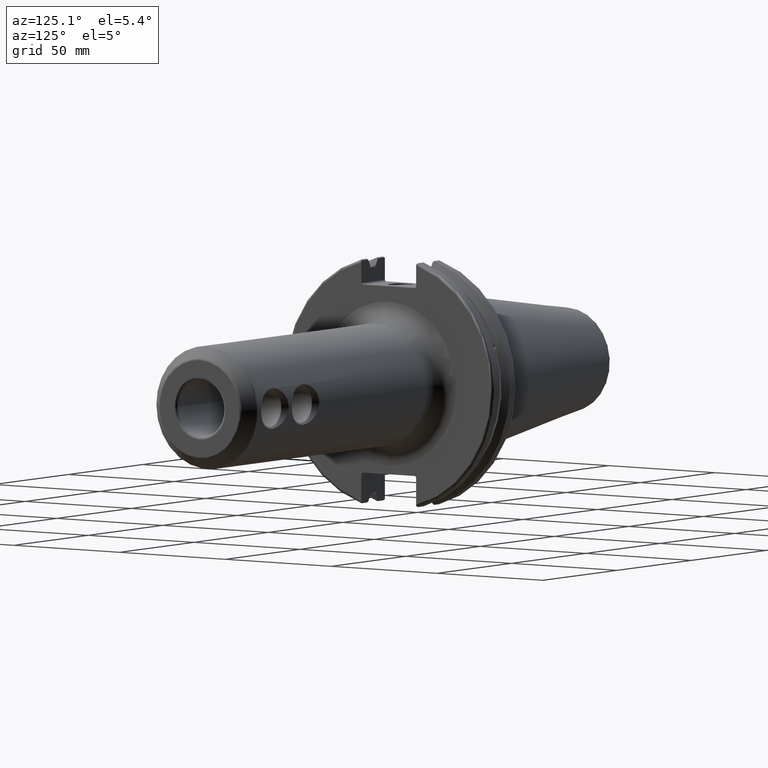
[diagram: clean part render]
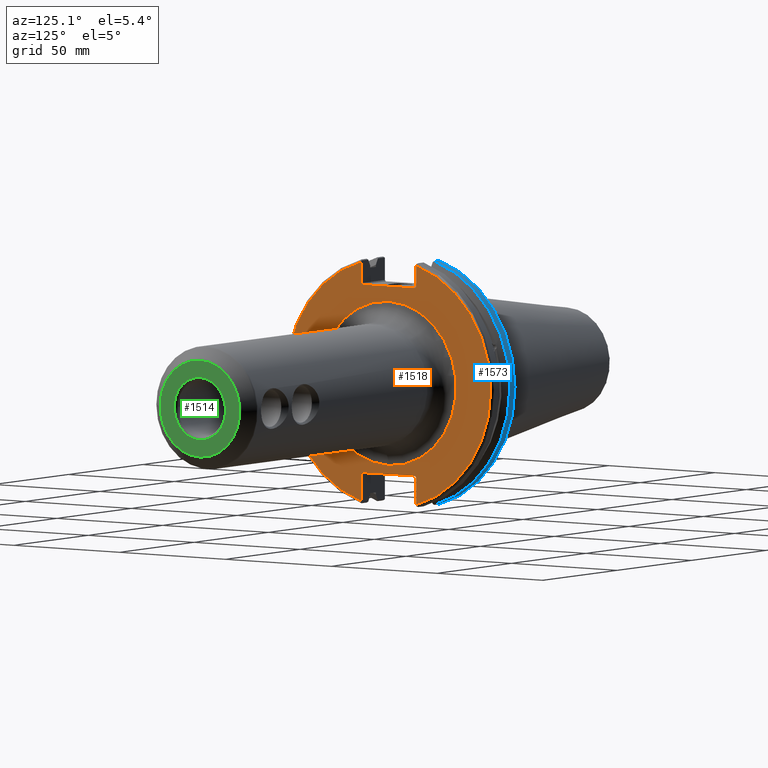
[diagram: same view with three faces highlighted in distinct colors, each labeled with its STEP entity id]
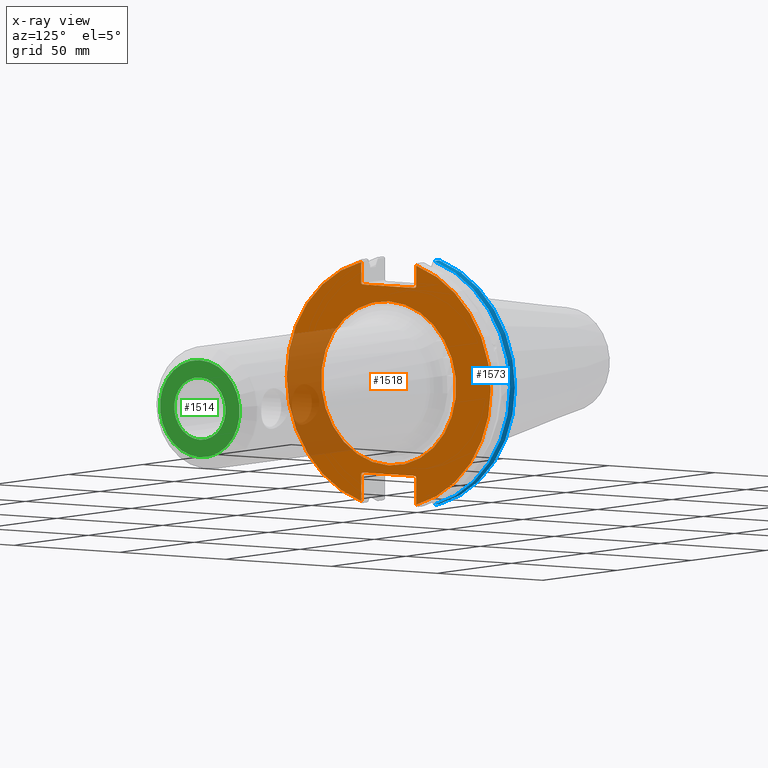
[diagram: x-ray of the same camera — body ghosted, the three highlighted faces saturated]
A machine part, auxiliary view with three faces highlighted in distinct colors.
The next image is the same camera in x-ray (body ghosted, the three faces saturated) — at least one of them is partly hidden behind the body in this view.
Their STEP definitions:

[orange] entity #1518 — the highlighted planar face has unit normal (1, 0, 0).
#34=PLANE('',#1648);
#75=FACE_BOUND('',#236,.T.);
#143=FACE_OUTER_BOUND('',#235,.T.);
#235=EDGE_LOOP('',(#1095,#1096,#1097,#1098,#1099,#1100,#1101,#1102,#1103,
#1104,#1105,#1106));
#236=EDGE_LOOP('',(#1107));
#348=CIRCLE('',#1647,31.876);
#349=CIRCLE('',#1649,48.2125);
#350=CIRCLE('',#1650,48.2125);
#413=LINE('',#2423,#505);
#414=LINE('',#2425,#506);
#415=LINE('',#2427,#507);
#416=LINE('',#2429,#508);
#417=LINE('',#2431,#509);
#418=LINE('',#2435,#510);
#419=LINE('',#2437,#511);
#420=LINE('',#2439,#512);
#421=LINE('',#2441,#513);
#422=LINE('',#2442,#514);
#505=VECTOR('',#1859,10.);
#506=VECTOR('',#1860,10.);
#507=VECTOR('',#1861,10.);
#508=VECTOR('',#1862,10.);
#509=VECTOR('',#1863,10.);
#510=VECTOR('',#1866,10.);
#511=VECTOR('',#1867,10.);
#512=VECTOR('',#1868,10.);
#513=VECTOR('',#1869,10.);
#514=VECTOR('',#1870,10.);
#659=VERTEX_POINT('',#2415);
#660=VERTEX_POINT('',#2419);
#661=VERTEX_POINT('',#2420);
#662=VERTEX_POINT('',#2422);
#663=VERTEX_POINT('',#2424);
#664=VERTEX_POINT('',#2426);
#665=VERTEX_POINT('',#2428);
#666=VERTEX_POINT('',#2430);
#667=VERTEX_POINT('',#2432);
#668=VERTEX_POINT('',#2434);
#669=VERTEX_POINT('',#2436);
#670=VERTEX_POINT('',#2438);
#671=VERTEX_POINT('',#2440);
#828=EDGE_CURVE('',#659,#659,#348,.T.);
#829=EDGE_CURVE('',#660,#661,#349,.T.);
#830=EDGE_CURVE('',#660,#662,#413,.T.);
#831=EDGE_CURVE('',#663,#662,#414,.T.);
#832=EDGE_CURVE('',#663,#664,#415,.T.);
#833=EDGE_CURVE('',#665,#664,#416,.T.);
#834=EDGE_CURVE('',#665,#666,#417,.T.);
#835=EDGE_CURVE('',#667,#666,#350,.T.);
#836=EDGE_CURVE('',#667,#668,#418,.T.);
#837=EDGE_CURVE('',#669,#668,#419,.T.);
#838=EDGE_CURVE('',#669,#670,#420,.T.);
#839=EDGE_CURVE('',#671,#670,#421,.T.);
#840=EDGE_CURVE('',#671,#661,#422,.T.);
#1095=ORIENTED_EDGE('',*,*,#829,.F.);
#1096=ORIENTED_EDGE('',*,*,#830,.T.);
#1097=ORIENTED_EDGE('',*,*,#831,.F.);
#1098=ORIENTED_EDGE('',*,*,#832,.T.);
#1099=ORIENTED_EDGE('',*,*,#833,.F.);
#1100=ORIENTED_EDGE('',*,*,#834,.T.);
#1101=ORIENTED_EDGE('',*,*,#835,.F.);
#1102=ORIENTED_EDGE('',*,*,#836,.T.);
#1103=ORIENTED_EDGE('',*,*,#837,.F.);
#1104=ORIENTED_EDGE('',*,*,#838,.T.);
#1105=ORIENTED_EDGE('',*,*,#839,.F.);
#1106=ORIENTED_EDGE('',*,*,#840,.T.);
#1107=ORIENTED_EDGE('',*,*,#828,.F.);
#1518=ADVANCED_FACE('',(#143,#75),#34,.T.);
#1647=AXIS2_PLACEMENT_3D('',#2417,#1853,#1854);
#1648=AXIS2_PLACEMENT_3D('',#2418,#1855,#1856);
#1649=AXIS2_PLACEMENT_3D('',#2421,#1857,#1858);
#1650=AXIS2_PLACEMENT_3D('',#2433,#1864,#1865);
#1853=DIRECTION('center_axis',(1.,0.,0.));
#1854=DIRECTION('ref_axis',(0.,-1.,-1.22464679914735E-16));
#1855=DIRECTION('center_axis',(1.,0.,0.));
#1856=DIRECTION('ref_axis',(0.,0.,-1.));
#1857=DIRECTION('center_axis',(-1.,0.,0.));
#1858=DIRECTION('ref_axis',(0.,1.,-6.12323399573677E-17));
#1859=DIRECTION('',(0.,0.,-1.));
#1860=DIRECTION('',(0.,0.707106781186549,0.707106781186546));
#1861=DIRECTION('',(0.,-1.,0.));
#1862=DIRECTION('',(0.,0.707106781186549,-0.707106781186546));
#1863=DIRECTION('',(0.,0.,1.));
#1864=DIRECTION('center_axis',(-1.,0.,0.));
#1865=DIRECTION('ref_axis',(0.,-1.,1.60812264967664E-16));
#1866=DIRECTION('',(0.,0.,1.));
#1867=DIRECTION('',(0.,-0.707106781186549,-0.707106781186546));
#1868=DIRECTION('',(0.,1.,0.));
#1869=DIRECTION('',(0.,-0.707106781186549,0.707106781186546));
#1870=DIRECTION('',(0.,0.,-1.));
#2415=CARTESIAN_POINT('',(19.05,-3.9036841369621E-15,-31.876));
#2417=CARTESIAN_POINT('Origin',(19.05,0.,0.));
#2418=CARTESIAN_POINT('Origin',(19.05,0.,0.));
#2419=CARTESIAN_POINT('',(19.05,12.95,46.4407434937254));
#2420=CARTESIAN_POINT('',(19.05,12.95,-46.4407434937254));
#2421=CARTESIAN_POINT('Origin',(19.05,0.,0.));
#2422=CARTESIAN_POINT('',(19.05,12.95,38.219));
#2423=CARTESIAN_POINT('',(19.05,12.95,18.8595));
#2424=CARTESIAN_POINT('',(19.05,12.45,37.719));
#2425=CARTESIAN_POINT('',(19.05,0.0327499999999836,25.30175));
#2426=CARTESIAN_POINT('',(19.05,-12.45,37.719));
#2427=CARTESIAN_POINT('',(19.05,0.,37.719));
#2428=CARTESIAN_POINT('',(19.05,-12.95,38.219));
#2429=CARTESIAN_POINT('',(19.05,-0.0327499999999817,25.30175));
#2430=CARTESIAN_POINT('',(19.05,-12.95,46.4407434937254));
#2431=CARTESIAN_POINT('',(19.05,-12.95,18.8595));
#2432=CARTESIAN_POINT('',(19.05,-12.95,-46.4407434937254));
#2433=CARTESIAN_POINT('Origin',(19.05,0.,0.));
#2434=CARTESIAN_POINT('',(19.05,-12.95,-35.806));
#2435=CARTESIAN_POINT('',(19.05,-12.95,-17.653));
#2436=CARTESIAN_POINT('',(19.05,-12.45,-35.306));
#2437=CARTESIAN_POINT('',(19.05,-0.635999999999989,-23.492));
#2438=CARTESIAN_POINT('',(19.05,12.45,-35.306));
#2439=CARTESIAN_POINT('',(19.05,-3.33066907387547E-15,-35.306));
#2440=CARTESIAN_POINT('',(19.05,12.95,-35.806));
#2441=CARTESIAN_POINT('',(19.05,0.635999999999982,-23.492));
#2442=CARTESIAN_POINT('',(19.05,12.95,-17.653));

[blue] entity #1573 — the highlighted cylindrical surface (partial cylindrical patch) has radius 49.2125 mm, axis along (1, 0, 0).
#125=CYLINDRICAL_SURFACE('',#1751,49.2125);
#198=FACE_OUTER_BOUND('',#307,.T.);
#307=EDGE_LOOP('',(#1407,#1408,#1409,#1410));
#388=CIRCLE('',#1732,49.2125);
#395=CIRCLE('',#1752,49.2125);
#480=LINE('',#3210,#572);
#491=LINE('',#3252,#583);
#572=VECTOR('',#2094,10.);
#583=VECTOR('',#2141,10.);
#779=VERTEX_POINT('',#3183);
#780=VERTEX_POINT('',#3192);
#781=VERTEX_POINT('',#3209);
#788=VERTEX_POINT('',#3251);
#986=EDGE_CURVE('',#779,#780,#388,.T.);
#989=EDGE_CURVE('',#780,#781,#480,.T.);
#1008=EDGE_CURVE('',#788,#779,#491,.T.);
#1009=EDGE_CURVE('',#781,#788,#395,.T.);
#1407=ORIENTED_EDGE('',*,*,#986,.F.);
#1408=ORIENTED_EDGE('',*,*,#1008,.F.);
#1409=ORIENTED_EDGE('',*,*,#1009,.F.);
#1410=ORIENTED_EDGE('',*,*,#989,.F.);
#1573=ADVANCED_FACE('',(#198),#125,.T.);
#1732=AXIS2_PLACEMENT_3D('',#3193,#2090,#2091);
#1751=AXIS2_PLACEMENT_3D('',#3250,#2139,#2140);
#1752=AXIS2_PLACEMENT_3D('',#3253,#2142,#2143);
#2090=DIRECTION('center_axis',(-1.,0.,0.));
#2091=DIRECTION('ref_axis',(0.,1.,-6.12323399573677E-17));
#2094=DIRECTION('',(1.,0.,0.));
#2139=DIRECTION('center_axis',(1.,0.,0.));
#2140=DIRECTION('ref_axis',(0.,1.,0.));
#2141=DIRECTION('',(-1.,0.,0.));
#2142=DIRECTION('center_axis',(1.,0.,0.));
#2143=DIRECTION('ref_axis',(0.,0.,-1.));
#3183=CARTESIAN_POINT('',(4.175,13.4317035994433,47.3440544806494));
#3192=CARTESIAN_POINT('',(4.175,13.4317035994433,-47.3440544806494));
#3193=CARTESIAN_POINT('Origin',(4.175,0.,0.));
#3209=CARTESIAN_POINT('',(7.60799096595127,13.4317035994433,-47.3440544806494));
#3210=CARTESIAN_POINT('',(5.39149548297564,13.4317035994433,-47.3440544806494));
#3250=CARTESIAN_POINT('Origin',(5.39149548297564,0.,0.));
#3251=CARTESIAN_POINT('',(7.60799096595127,13.4317035994433,47.3440544806494));
#3252=CARTESIAN_POINT('',(5.39149548297564,13.4317035994433,47.3440544806494));
#3253=CARTESIAN_POINT('Origin',(7.60799096595127,0.,0.));

[green] entity #1514 — the highlighted planar face has unit normal (1, 0, 0).
#33=PLANE('',#1637);
#72=FACE_BOUND('',#229,.T.);
#139=FACE_OUTER_BOUND('',#228,.T.);
#228=EDGE_LOOP('',(#1074));
#229=EDGE_LOOP('',(#1075));
#340=CIRCLE('',#1635,18.8357864376269);
#342=CIRCLE('',#1638,12.1125);
#654=VERTEX_POINT('',#2398);
#655=VERTEX_POINT('',#2402);
#819=EDGE_CURVE('',#654,#654,#340,.T.);
#821=EDGE_CURVE('',#655,#655,#342,.T.);
#1074=ORIENTED_EDGE('',*,*,#819,.F.);
#1075=ORIENTED_EDGE('',*,*,#821,.F.);
#1514=ADVANCED_FACE('',(#139,#72),#33,.T.);
#1635=AXIS2_PLACEMENT_3D('',#2399,#1828,#1829);
#1637=AXIS2_PLACEMENT_3D('',#2401,#1832,#1833);
#1638=AXIS2_PLACEMENT_3D('',#2403,#1834,#1835);
#1828=DIRECTION('center_axis',(-1.,0.,0.));
#1829=DIRECTION('ref_axis',(0.,-1.,1.83697019872103E-16));
#1832=DIRECTION('center_axis',(1.,0.,0.));
#1833=DIRECTION('ref_axis',(0.,0.,-1.));
#1834=DIRECTION('center_axis',(1.,0.,0.));
#1835=DIRECTION('ref_axis',(0.,-1.,1.83697019872103E-16));
#2398=CARTESIAN_POINT('',(146.,-2.30671855702629E-15,18.8357864376269));
#2399=CARTESIAN_POINT('Origin',(146.,0.,0.));
#2401=CARTESIAN_POINT('Origin',(146.,11.1125,0.));
#2402=CARTESIAN_POINT('',(146.,-1.48335343546723E-15,12.1125));
#2403=CARTESIAN_POINT('Origin',(146.,0.,0.));